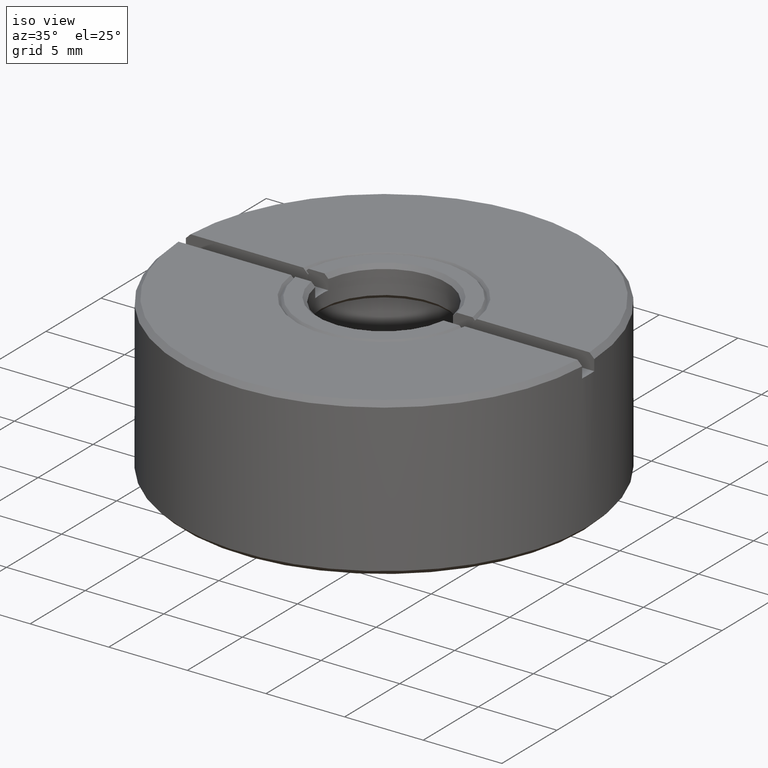
[diagram: clean part render]
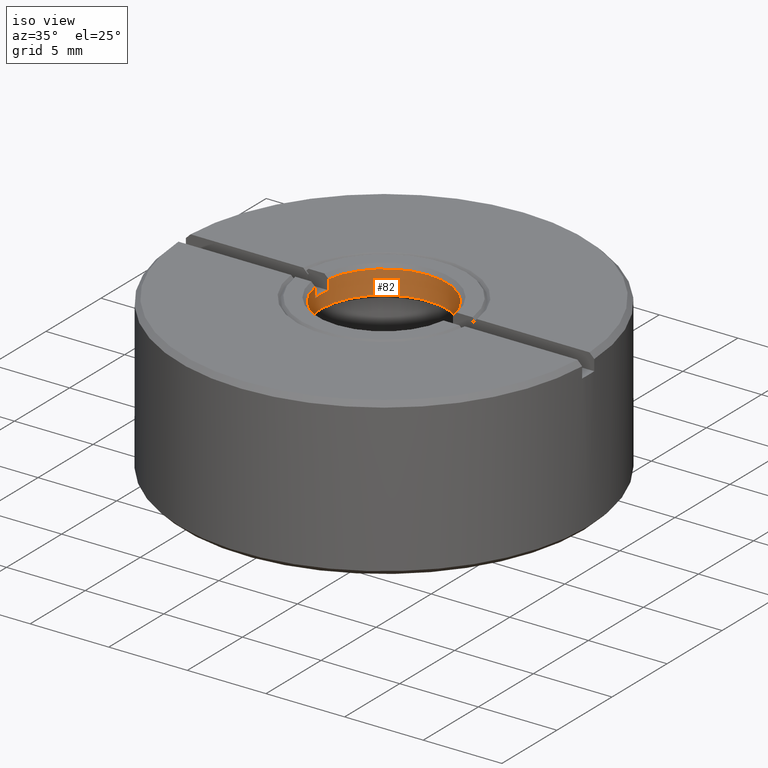
[diagram: same view with one face highlighted and labeled with its STEP entity id]
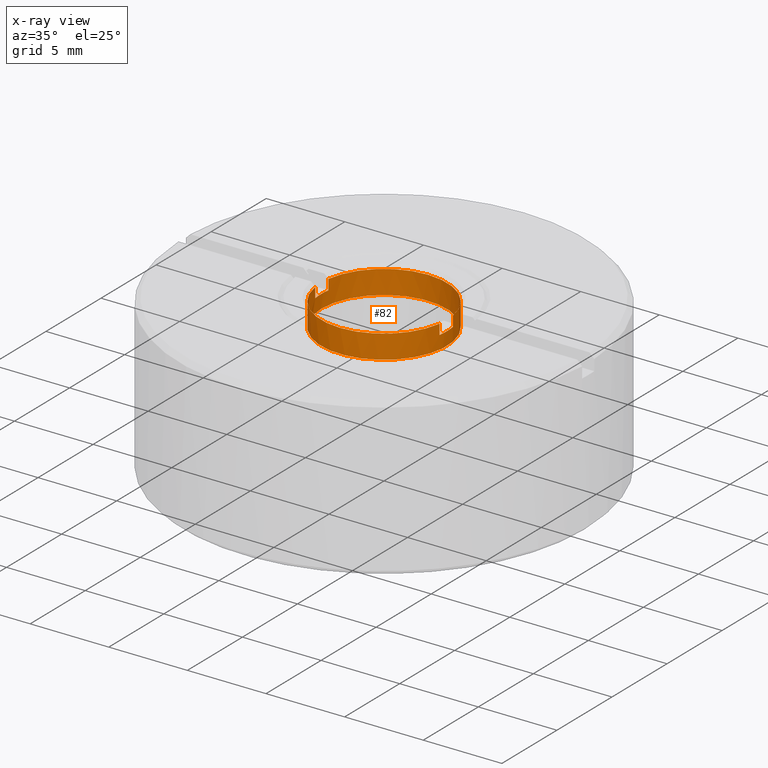
[diagram: x-ray of the same camera — body ghosted, the highlighted face saturated]
A machine part, iso view. The second image highlights one B-rep face of the part: STEP entity #82.
The next image is the same camera in x-ray: the body ghosted, the highlighted face saturated — about 0% of this face is hidden behind the body in this view.
In plain terms, the highlighted cylindrical surface (bore or boss wall) has radius 4 mm, axis along (0, 0, 1).
Its self-contained STEP definition (entity closure, byte-faithful):
#16 = EDGE_CURVE ( 'NONE', #609, #1214, #1579, .T. ) ;
#21 = LINE ( 'NONE', #385, #1310 ) ;
#37 = ORIENTED_EDGE ( 'NONE', *, *, #659, .F. ) ;
#55 = AXIS2_PLACEMENT_3D ( 'NONE', #1526, #663, #1168 ) ;
#68 = ORIENTED_EDGE ( 'NONE', *, *, #1561, .T. ) ;
#81 = CIRCLE ( 'NONE', #885, 4.000000000000003553 ) ;
#82 = ADVANCED_FACE ( 'NONE', ( #470, #970 ), #1352, .F. ) ;
#133 = VECTOR ( 'NONE', #1462, 1000.000000000000000 ) ;
#142 = CARTESIAN_POINT ( 'NONE',  ( -3.954743986655446797, 0.6000000000000000888, 4.099999999999999645 ) ) ;
#153 = VERTEX_POINT ( 'NONE', #142 ) ;
#177 = DIRECTION ( 'NONE',  ( -0.000000000000000000, -0.000000000000000000, -1.000000000000000000 ) ) ;
#191 = EDGE_CURVE ( 'NONE', #281, #1214, #1171, .T. ) ;
#230 = EDGE_CURVE ( 'NONE', #1107, #1107, #1330, .T. ) ;
#236 = AXIS2_PLACEMENT_3D ( 'NONE', #1327, #570, #1461 ) ;
#243 = DIRECTION ( 'NONE',  ( 1.000000000000000000, 0.000000000000000000, 0.000000000000000000 ) ) ;
#244 = CARTESIAN_POINT ( 'NONE',  ( -3.954743986653852517, -0.5999999999999998668, 4.100000000000000533 ) ) ;
#281 = VERTEX_POINT ( 'NONE', #434 ) ;
#385 = CARTESIAN_POINT ( 'NONE',  ( 3.954743986653852517, -0.5999999999999998668, 4.100000000000000533 ) ) ;
#387 = CIRCLE ( 'NONE', #779, 4.000000000000003553 ) ;
#408 = ORIENTED_EDGE ( 'NONE', *, *, #191, .F. ) ;
#434 = CARTESIAN_POINT ( 'NONE',  ( 3.954743986655446797, -0.5999999999999998668, 4.749999999991829647 ) ) ;
#440 = ORIENTED_EDGE ( 'NONE', *, *, #230, .T. ) ;
#470 = FACE_OUTER_BOUND ( 'NONE', #1140, .T. ) ;
#507 = ORIENTED_EDGE ( 'NONE', *, *, #800, .F. ) ;
#521 = CARTESIAN_POINT ( 'NONE',  ( 0.000000000000000000, 0.000000000000000000, 4.099999999999999645 ) ) ;
#539 = CIRCLE ( 'NONE', #236, 4.000000000000003553 ) ;
#570 = DIRECTION ( 'NONE',  ( -0.000000000000000000, -0.000000000000000000, -1.000000000000000000 ) ) ;
#576 = ORIENTED_EDGE ( 'NONE', *, *, #16, .T. ) ;
#609 = VERTEX_POINT ( 'NONE', #664 ) ;
#659 = EDGE_CURVE ( 'NONE', #1573, #1292, #81, .T. ) ;
#663 = DIRECTION ( 'NONE',  ( -0.000000000000000000, -0.000000000000000000, -1.000000000000000000 ) ) ;
#664 = CARTESIAN_POINT ( 'NONE',  ( -3.954743986655446797, -0.5999999999999998668, 4.099999999999999645 ) ) ;
#670 = DIRECTION ( 'NONE',  ( 1.000000000000000000, 0.000000000000000000, 0.000000000000000000 ) ) ;
#732 = VECTOR ( 'NONE', #1607, 1000.000000000000000 ) ;
#744 = CARTESIAN_POINT ( 'NONE',  ( 0.000000000000000000, 0.000000000000000000, 3.000000000000000000 ) ) ;
#766 = CARTESIAN_POINT ( 'NONE',  ( 0.000000000000000000, 0.000000000000000000, 4.749999999999994671 ) ) ;
#779 = AXIS2_PLACEMENT_3D ( 'NONE', #521, #1509, #243 ) ;
#790 = CARTESIAN_POINT ( 'NONE',  ( 0.000000000000000000, 0.000000000000000000, 4.099999999999999645 ) ) ;
#793 = CARTESIAN_POINT ( 'NONE',  ( 3.954743986657340837, 0.6000000000000000888, 4.749999999995277555 ) ) ;
#800 = EDGE_CURVE ( 'NONE', #1110, #1076, #539, .T. ) ;
#842 = ORIENTED_EDGE ( 'NONE', *, *, #1398, .T. ) ;
#877 = EDGE_CURVE ( 'NONE', #609, #153, #387, .T. ) ;
#885 = AXIS2_PLACEMENT_3D ( 'NONE', #790, #177, #670 ) ;
#889 = VECTOR ( 'NONE', #1364, 1000.000000000000000 ) ;
#890 = CARTESIAN_POINT ( 'NONE',  ( 3.954743986655446797, -0.5999999999999998668, 4.099999999999999645 ) ) ;
#927 = CARTESIAN_POINT ( 'NONE',  ( -3.954743986655446797, 0.6000000000000000888, 4.749999999991829647 ) ) ;
#933 = CARTESIAN_POINT ( 'NONE',  ( 3.954743986653852517, 0.6000000000000000888, 4.100000000000000533 ) ) ;
#942 = LINE ( 'NONE', #933, #889 ) ;
#955 = DIRECTION ( 'NONE',  ( 1.000000000000000000, 0.000000000000000000, 0.000000000000000000 ) ) ;
#970 = FACE_OUTER_BOUND ( 'NONE', #1258, .T. ) ;
#983 = LINE ( 'NONE', #1109, #732 ) ;
#1026 = DIRECTION ( 'NONE',  ( -0.000000000000000000, -0.000000000000000000, -1.000000000000000000 ) ) ;
#1076 = VERTEX_POINT ( 'NONE', #793 ) ;
#1107 = VERTEX_POINT ( 'NONE', #1353 ) ;
#1109 = CARTESIAN_POINT ( 'NONE',  ( -3.954743986653852517, 0.6000000000000000888, 4.100000000000000533 ) ) ;
#1110 = VERTEX_POINT ( 'NONE', #927 ) ;
#1140 = EDGE_LOOP ( 'NONE', ( #37, #68, #507, #1307, #1591, #576, #408, #842 ) ) ;
#1144 = DIRECTION ( 'NONE',  ( 1.000000000000000000, 0.000000000000000000, 0.000000000000000000 ) ) ;
#1168 = DIRECTION ( 'NONE',  ( -1.000000000000000000, 0.000000000000000000, 0.000000000000000000 ) ) ;
#1171 = CIRCLE ( 'NONE', #1429, 4.000000000000003553 ) ;
#1214 = VERTEX_POINT ( 'NONE', #1458 ) ;
#1258 = EDGE_LOOP ( 'NONE', ( #440 ) ) ;
#1292 = VERTEX_POINT ( 'NONE', #890 ) ;
#1307 = ORIENTED_EDGE ( 'NONE', *, *, #1377, .T. ) ;
#1310 = VECTOR ( 'NONE', #1366, 1000.000000000000000 ) ;
#1327 = CARTESIAN_POINT ( 'NONE',  ( 0.000000000000000000, 0.000000000000000000, 4.749999999999994671 ) ) ;
#1330 = CIRCLE ( 'NONE', #55, 4.000000000019099389 ) ;
#1352 = CYLINDRICAL_SURFACE ( 'NONE', #1382, 4.000000000000003553 ) ;
#1353 = CARTESIAN_POINT ( 'NONE',  ( -4.000000000019099389, 0.000000000000000000, 3.249999999984538590 ) ) ;
#1364 = DIRECTION ( 'NONE',  ( 0.000000000000000000, -0.000000000000000000, 1.000000000000000000 ) ) ;
#1366 = DIRECTION ( 'NONE',  ( 0.000000000000000000, -0.000000000000000000, -1.000000000000000000 ) ) ;
#1377 = EDGE_CURVE ( 'NONE', #1110, #153, #983, .T. ) ;
#1382 = AXIS2_PLACEMENT_3D ( 'NONE', #744, #1469, #955 ) ;
#1398 = EDGE_CURVE ( 'NONE', #281, #1292, #21, .T. ) ;
#1429 = AXIS2_PLACEMENT_3D ( 'NONE', #766, #1026, #1144 ) ;
#1458 = CARTESIAN_POINT ( 'NONE',  ( -3.954743986657340837, -0.5999999999999998668, 4.749999999995277555 ) ) ;
#1461 = DIRECTION ( 'NONE',  ( 1.000000000000000000, 0.000000000000000000, 0.000000000000000000 ) ) ;
#1462 = DIRECTION ( 'NONE',  ( -0.000000000000000000, 0.000000000000000000, 1.000000000000000000 ) ) ;
#1469 = DIRECTION ( 'NONE',  ( 0.000000000000000000, 0.000000000000000000, 1.000000000000000000 ) ) ;
#1509 = DIRECTION ( 'NONE',  ( -0.000000000000000000, -0.000000000000000000, -1.000000000000000000 ) ) ;
#1526 = CARTESIAN_POINT ( 'NONE',  ( 0.000000000000000000, 0.000000000000000000, 3.249999999984538590 ) ) ;
#1561 = EDGE_CURVE ( 'NONE', #1573, #1076, #942, .T. ) ;
#1563 = CARTESIAN_POINT ( 'NONE',  ( 3.954743986655446797, 0.6000000000000000888, 4.099999999999999645 ) ) ;
#1573 = VERTEX_POINT ( 'NONE', #1563 ) ;
#1579 = LINE ( 'NONE', #244, #133 ) ;
#1591 = ORIENTED_EDGE ( 'NONE', *, *, #877, .F. ) ;
#1607 = DIRECTION ( 'NONE',  ( -0.000000000000000000, 0.000000000000000000, -1.000000000000000000 ) ) ;